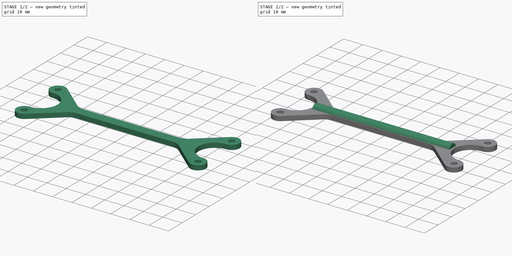
[diagram: build sequence overview — one tinted view per stage of 2, left to right]
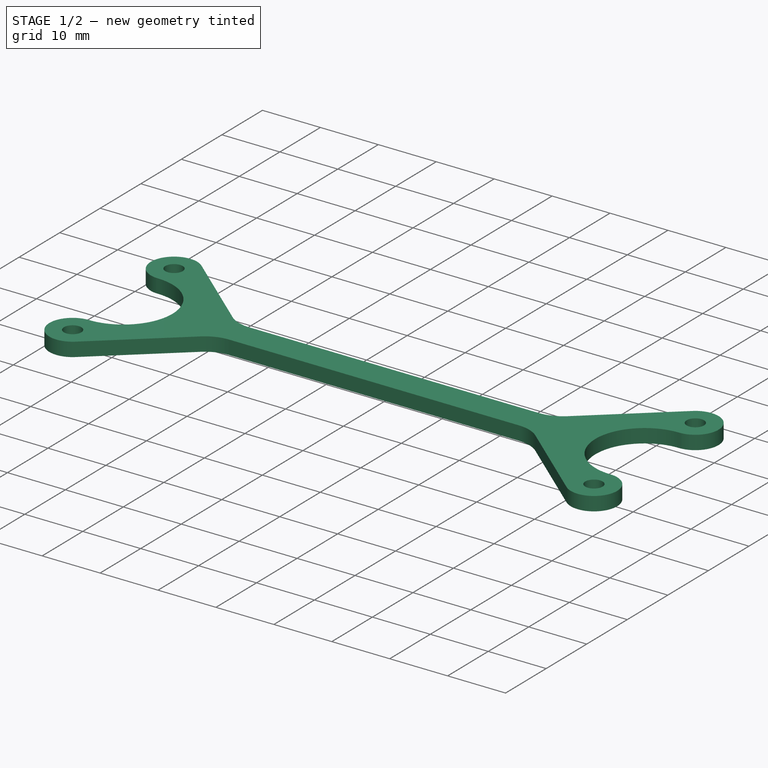
[diagram: stage 1 of 2 — iso view after this stage's code; geometry added in this stage tinted green]
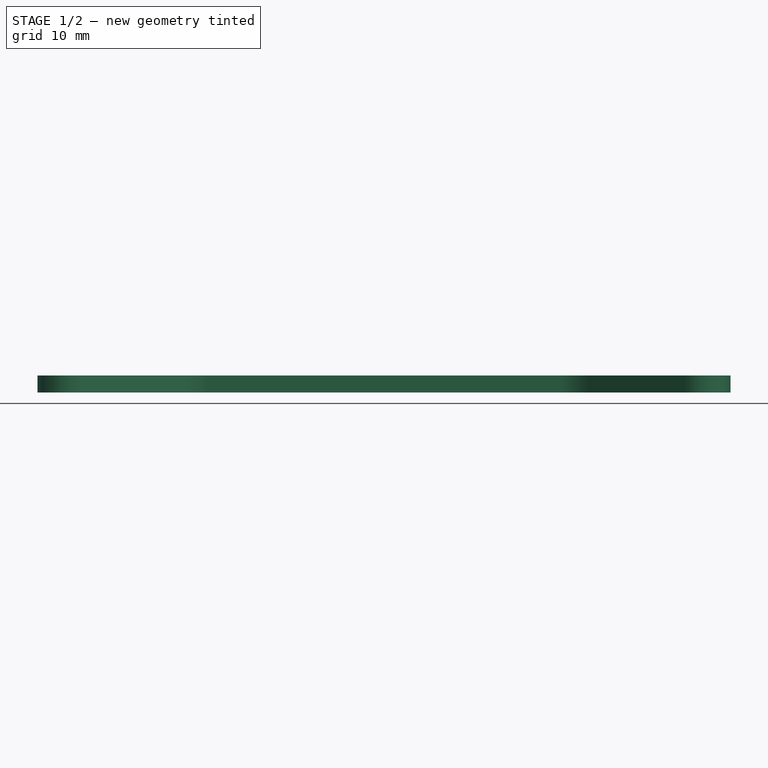
[diagram: stage 1 of 2 — front view after this stage's code; geometry added in this stage tinted green]
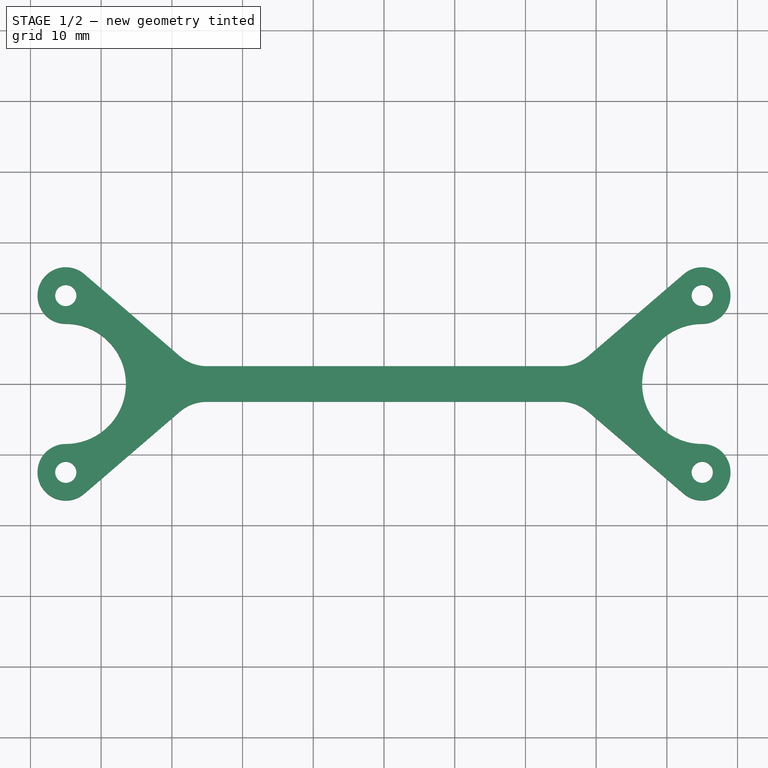
[diagram: stage 1 of 2 — top view after this stage's code; geometry added in this stage tinted green]
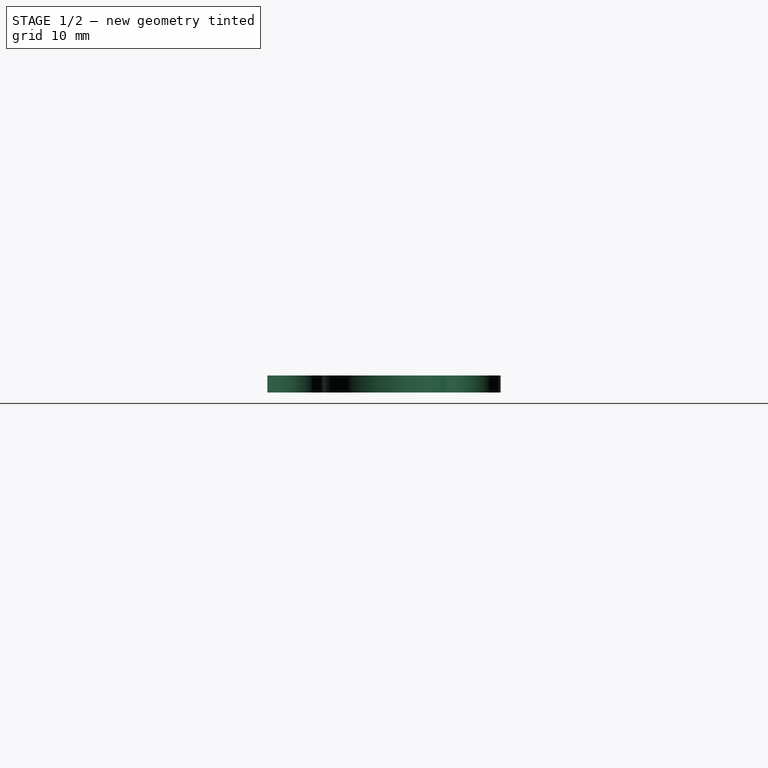
[diagram: stage 1 of 2 — right view after this stage's code; geometry added in this stage tinted green]
FCSTD DOCUMENT  (FreeCAD 0.20R29177 +426 (Git))
Label: turtle_fin_3030
License: All rights reserved
LicenseURL: http://en.wikipedia.org/wiki/All_rights_reserved
objects: Sketcher::SketchObject×2, PartDesign::Pad×2, PartDesign::Body×1
note: 7 computed .brp shape members not serialized (recipe doc carries the construction recipe); baked Part::Feature solids carry a one-line shape summary decoded from their .brp

FEATURE [Sketcher::SketchObject] Sketch003
  FullyConstrained = true
  MapMode = 5
  Support = -> [XY_Plane001]
  sketch-geometry (20):
    g0: Circle CenterX=-45 CenterY=12.5 CenterZ=0 NormalX=0 NormalY=0 NormalZ=1 AngleXU=0 Radius=1.5
    g1: Circle CenterX=-45 CenterY=-12.5 CenterZ=0 NormalX=0 NormalY=0 NormalZ=1 AngleXU=0 Radius=1.5
    g2: Circle CenterX=45 CenterY=12.5 CenterZ=0 NormalX=0 NormalY=0 NormalZ=1 AngleXU=0 Radius=1.5
    g3: Circle CenterX=45 CenterY=-12.5 CenterZ=0 NormalX=0 NormalY=0 NormalZ=1 AngleXU=0 Radius=1.5
    g4: ArcOfCircle CenterX=45 CenterY=-12.5 CenterZ=0 NormalX=0 NormalY=0 NormalZ=1 AngleXU=0 Radius=4 StartAngle=4.00257 EndAngle=7.85398
    g5: ArcOfCircle CenterX=45 CenterY=12.5 CenterZ=0 NormalX=0 NormalY=0 NormalZ=1 AngleXU=0 Radius=4 StartAngle=4.71239 EndAngle=8.5638
    g6: ArcOfCircle CenterX=-45 CenterY=12.5 CenterZ=0 NormalX=0 NormalY=0 NormalZ=1 AngleXU=0 Radius=4 StartAngle=0.860978 EndAngle=4.71239
    g7: ArcOfCircle CenterX=-45 CenterY=-12.5 CenterZ=0 NormalX=0 NormalY=0 NormalZ=1 AngleXU=0 Radius=4 StartAngle=1.5708 EndAngle=5.42221
    g8: ArcOfCircle CenterX=-45 CenterY=-5e-16 CenterZ=0 NormalX=0 NormalY=0 NormalZ=1 AngleXU=0 Radius=8.5 StartAngle=4.71239 EndAngle=7.85398
    g9: ArcOfCircle CenterX=45 CenterY=-5e-16 CenterZ=0 NormalX=0 NormalY=0 NormalZ=1 AngleXU=0 Radius=8.5 StartAngle=1.5708 EndAngle=4.71239
    g10: LineSegment StartX=-42.3932 StartY=-15.5339 StartZ=0 EndX=-28.9102 EndY=-3.94912 EndZ=0
    g11: LineSegment StartX=-42.3932 StartY=15.5339 StartZ=0 EndX=-28.9102 EndY=3.94912 EndZ=0
    g12: LineSegment StartX=42.3932 StartY=15.5339 StartZ=0 EndX=28.9102 EndY=3.94912 EndZ=0
    g13: LineSegment StartX=42.3932 StartY=-15.5339 StartZ=0 EndX=28.9102 EndY=-3.94912 EndZ=0
    g14: ArcOfCircle CenterX=-25 CenterY=8.5 CenterZ=0 NormalX=0 NormalY=0 NormalZ=1 AngleXU=0 Radius=6 StartAngle=4.00257 EndAngle=4.71239
    g15: ArcOfCircle CenterX=-25 CenterY=-8.5 CenterZ=0 NormalX=0 NormalY=0 NormalZ=1 AngleXU=0 Radius=6 StartAngle=1.5708 EndAngle=2.28061
    g16: ArcOfCircle CenterX=25 CenterY=-8.5 CenterZ=0 NormalX=0 NormalY=0 NormalZ=1 AngleXU=0 Radius=6 StartAngle=0.860978 EndAngle=1.5708
    g17: ArcOfCircle CenterX=25 CenterY=8.5 CenterZ=0 NormalX=0 NormalY=0 NormalZ=1 AngleXU=0 Radius=6 StartAngle=4.71239 EndAngle=5.42221
    g18: LineSegment StartX=-25 StartY=-2.5 StartZ=0 EndX=25 EndY=-2.5 EndZ=0
    g19: LineSegment StartX=25 StartY=2.5 StartZ=0 EndX=-25 EndY=2.5 EndZ=0
  constraints (43):
    c: Coincident(g4,g3)
    c: Coincident(g5,g2)
    c: Coincident(g6,g0)
    c: Coincident(g7,g1)
    c: Symmetric(g3,g1,g-2)
    c: Symmetric(g2,g0,g-2)
    c: Symmetric(g1,g0,g-1)
    c: Distance(g0,g1) = 25
    c: Radius(g1) = 1.5
    c: Radius(g7) = 4
    c: Equal(g1,g0)
    c: Equal(g0,g2)
    c: Equal(g2,g3)
    c: Equal(g6,g7)
    c: Equal(g7,g5)
    c: DistanceX(g1,g3) = 90
    c: Symmetric(g9,g8,g-2)
    c: Symmetric(g13,g10,g-2)
    c: Symmetric(g12,g11,g-2)
    c: Symmetric(g10,g11,g-1)
    c: Tangent(g16,g13) = -1.5708
    c: Tangent(g17,g12) = 1.5708
    c: Tangent(g15,g10) = 1.5708
    c: Tangent(g14,g11) = -1.5708
    c: Vertical(g14,g15)
    c: Horizontal(g18)
    c: Horizontal(g19)
    c: Tangent(g18,g15) = 1.5708
    c: Tangent(g19,g14) = 1.5708
    c: Tangent(g19,g17) = 1.5708
    c: Tangent(g18,g16) = 1.5708
    c: Distance(g15,g14) = 5
    c: Radius(g15) = 6
    c: DistanceX(g1,g15) = 20
    c: Tangent(g6,g8) = 1.5708
    c: Tangent(g6,g11) = 1.5708
    c: Tangent(g7,g10) = -1.5708
    c: Tangent(g7,g8) = 1.5708
    c: Tangent(g4,g13) = 1.5708
    c: Tangent(g5,g12) = -1.5708
    c: Tangent(g4,g9) = 1.5708
    c: Tangent(g5,g9) = 1.5708
    c: Vertical(g8,g1)
FEATURE [PartDesign::Pad] Pad001
  Direction = (0,0,1)
  Length = 2.4
  Length2 = 10
  Profile = -> Sketch003
  ReferenceAxis = -> Sketch003 [N_Axis]
  Type = 0
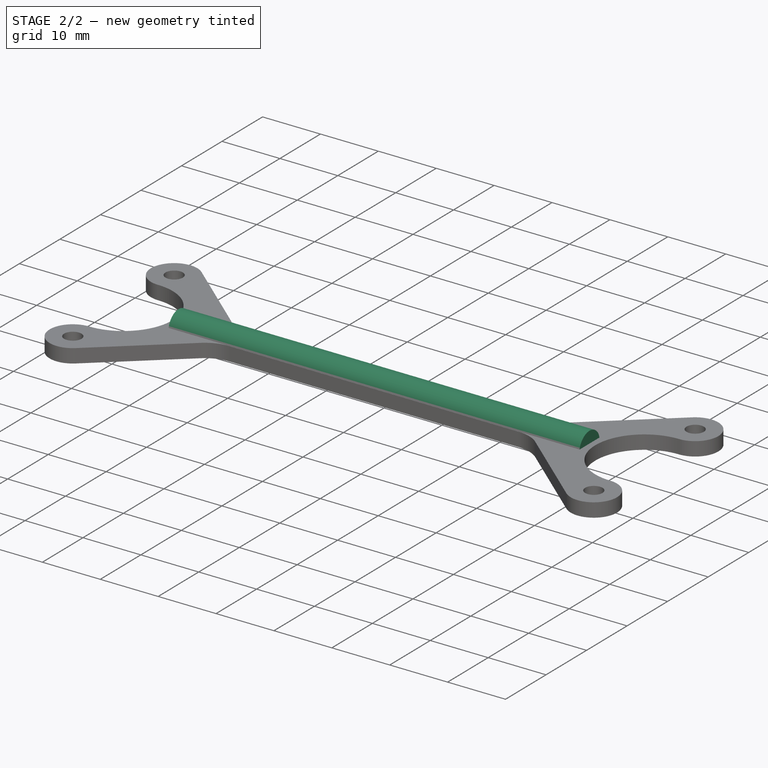
[diagram: stage 2 of 2 — iso view after this stage's code; geometry added in this stage tinted green]
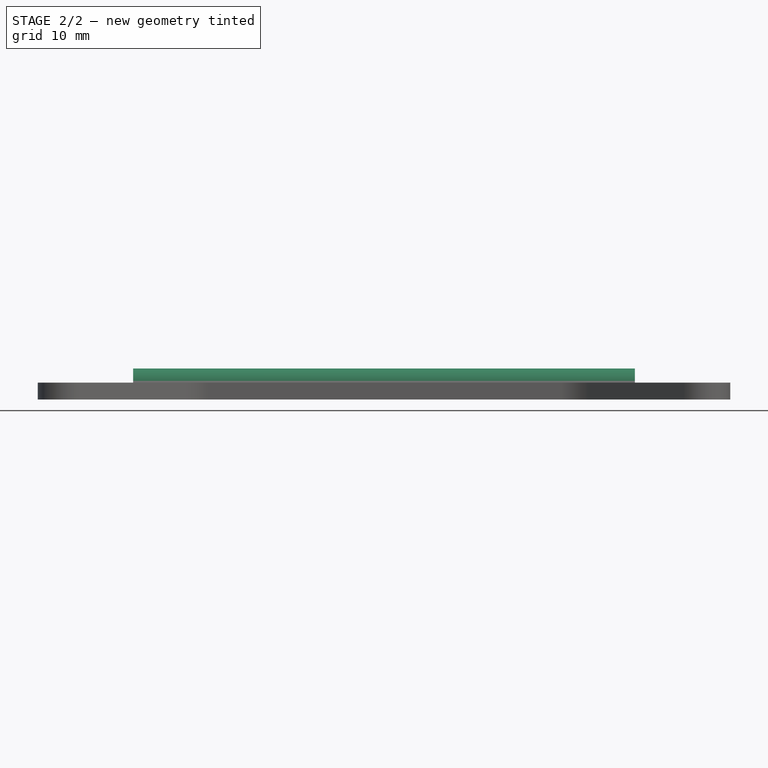
[diagram: stage 2 of 2 — front view after this stage's code; geometry added in this stage tinted green]
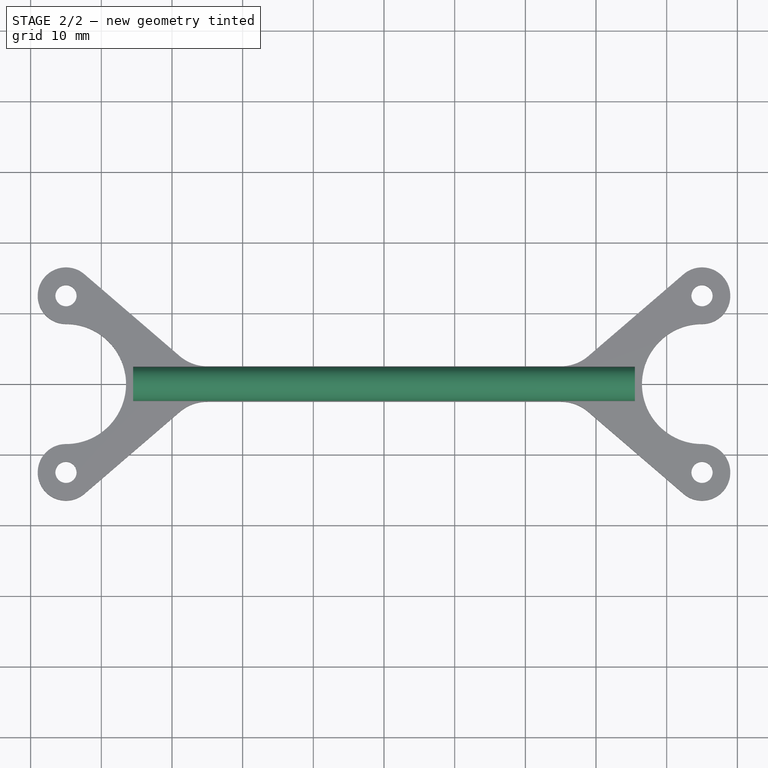
[diagram: stage 2 of 2 — top view after this stage's code; geometry added in this stage tinted green]
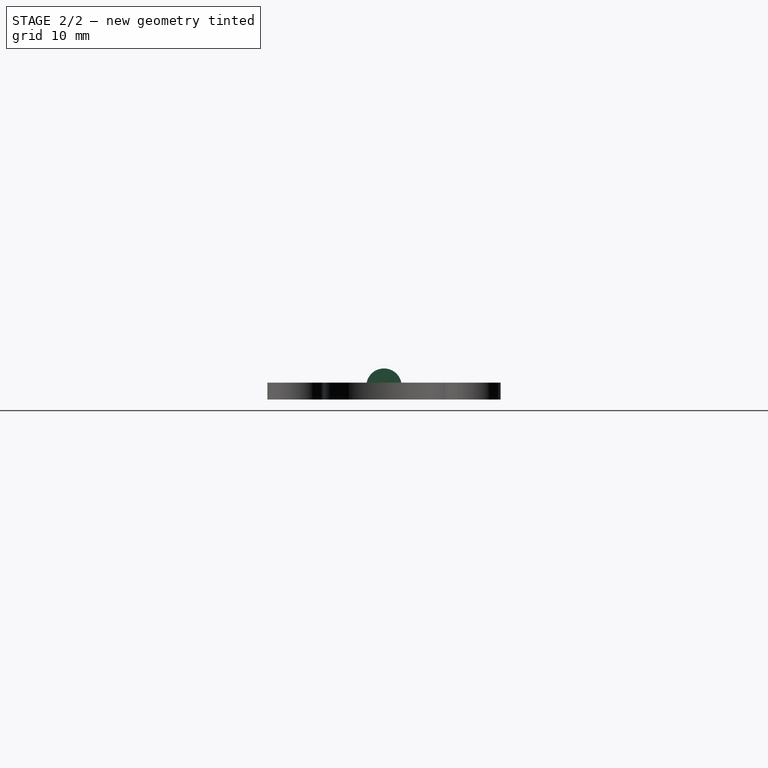
[diagram: stage 2 of 2 — right view after this stage's code; geometry added in this stage tinted green]
FEATURE [Sketcher::SketchObject] Sketch004
  ExternalGeometry = -> [Pad001]
  FullyConstrained = true
  MapMode = 5
  Placement = pos=(0,0,0) rot=(0.57735,0.57735,0.57735;2.0944rad)
  Support = -> [YZ_Plane001]
  sketch-geometry (3):
    g0: LineSegment StartX=-2.5 StartY=2.4 StartZ=0 EndX=2.5 EndY=2.4 EndZ=0
    g1: ArcOfCircle CenterX=1e-16 CenterY=1.9 CenterZ=0 NormalX=0 NormalY=0 NormalZ=1 AngleXU=0 Radius=2.5 StartAngle=0.201358 EndAngle=2.94023
    g2: LineSegment StartX=2.44949 StartY=2.4 StartZ=0 EndX=-2.44949 EndY=2.4 EndZ=0
  constraints (8):
    c: Coincident(g0,g-4)
    c: Coincident(g0,g-3)
    c: PointOnObject(g1,g0)
    c: Symmetric(g1,g1,g-2)
    c: Radius(g1) = 2.5
    c: Distance(g1,g0) = 0.5
    c: Coincident(g2,g1)
    c: Coincident(g2,g1)
FEATURE [PartDesign::Pad] Pad002
  BaseFeature = -> Pad001
  Direction = (1,-2e-16,3e-16)
  Length = 71
  Length2 = 10
  Midplane = true
  Profile = -> Sketch004
  ReferenceAxis = -> Sketch004 [N_Axis]
  Type = 0
FEATURE [PartDesign::Body] Body001  label="turtle_fin_v2_3030"
  Group = -> [Sketch003,Pad001,Sketch004,Pad002]
  Origin = -> Origin001
  Tip = -> Pad002
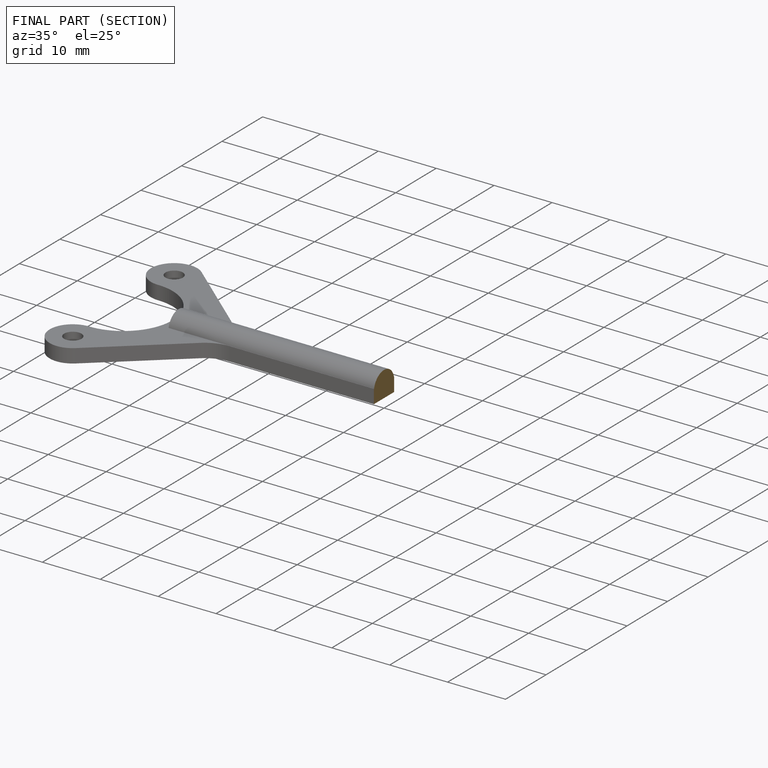
[diagram: finished part — half-section view (interior)]
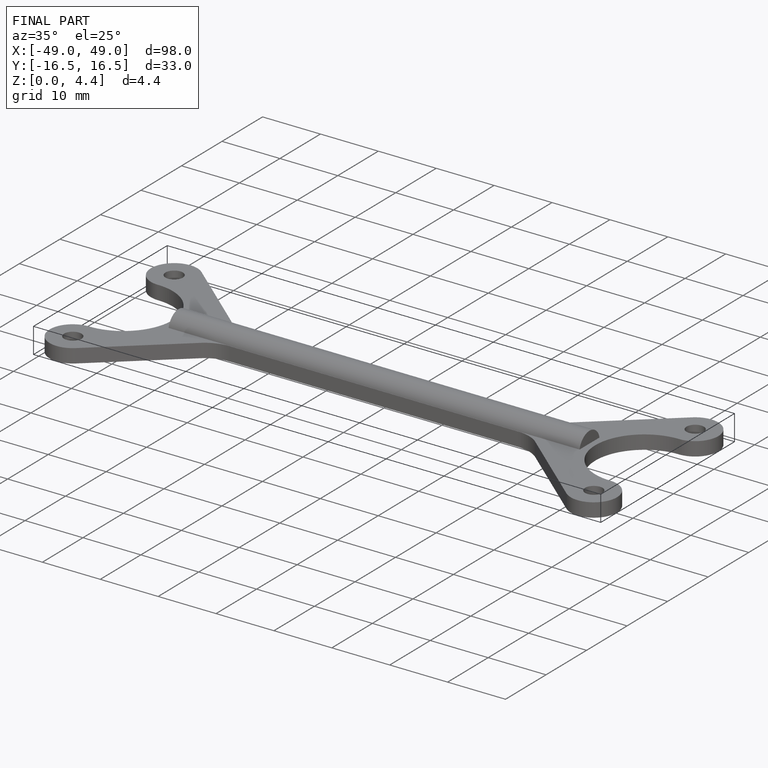
[diagram: finished part — iso view with bounding-box wireframe]
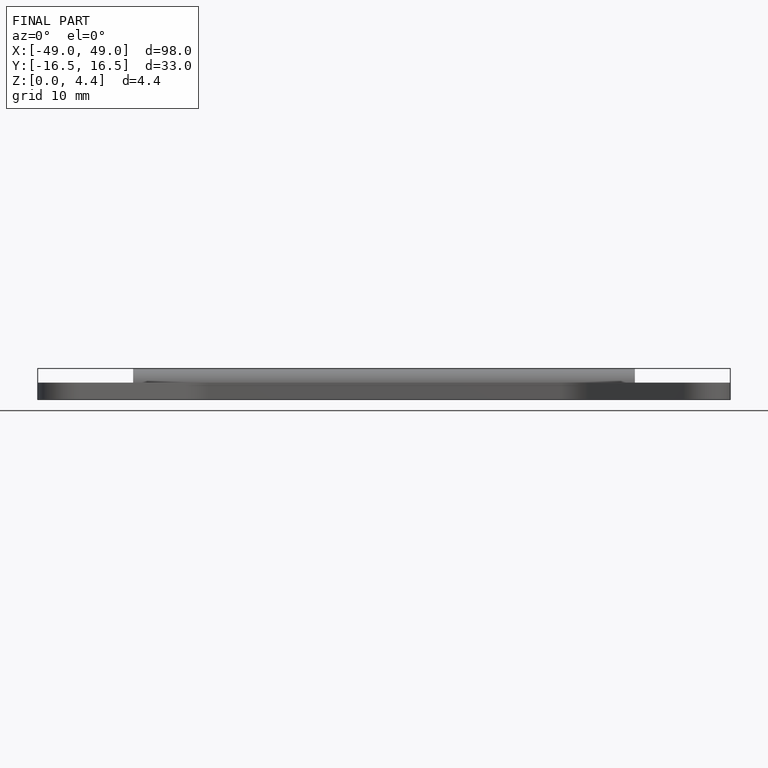
[diagram: finished part — front view with bounding-box wireframe]
